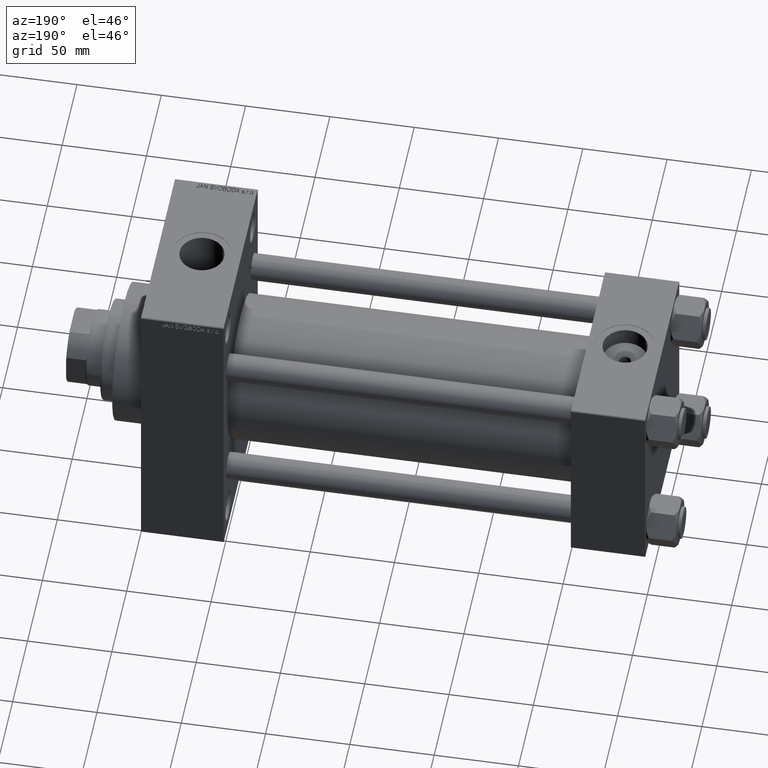
[diagram: clean part render]
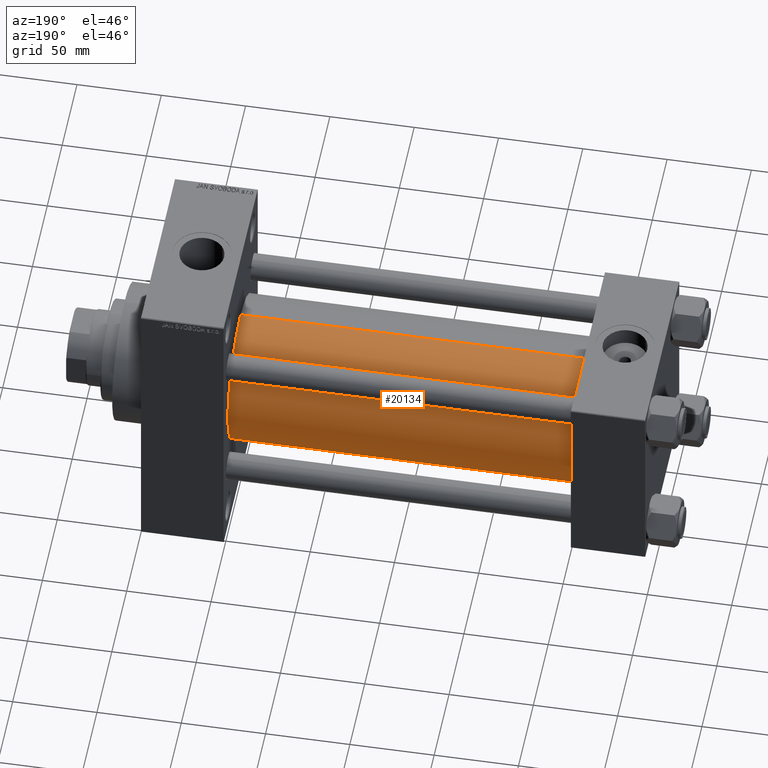
[diagram: same view with one face highlighted and labeled with its STEP entity id]
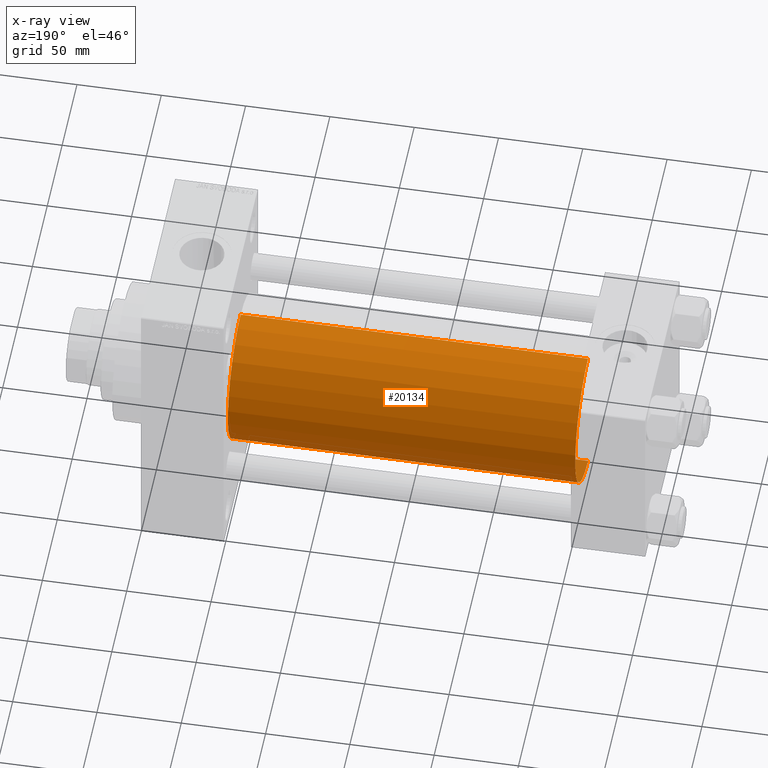
[diagram: x-ray of the same camera — body ghosted, the highlighted face saturated]
A machine part, auxiliary view. The second image highlights one B-rep face of the part: STEP entity #20134.
The next image is the same camera in x-ray: the body ghosted, the highlighted face saturated — about 0% of this face is hidden behind the body in this view.
In plain terms, the highlighted cylindrical surface (partial cylindrical patch) has radius 43 mm, axis along (-1, -0, -0).
Its self-contained STEP definition (entity closure, byte-faithful):
#3344 = LINE ( 'NONE', #39653, #22262 ) ;
#3491 = AXIS2_PLACEMENT_3D ( 'NONE', #13919, #18024, #7642 ) ;
#3829 = EDGE_CURVE ( 'NONE', #15130, #29591, #24357, .T. ) ;
#5192 = ORIENTED_EDGE ( 'NONE', *, *, #18555, .F. ) ;
#7642 = DIRECTION ( 'NONE',  ( 0.000000000000000000, 0.000000000000000000, -1.000000000000000000 ) ) ;
#10314 = FACE_OUTER_BOUND ( 'NONE', #32495, .T. ) ;
#11748 = AXIS2_PLACEMENT_3D ( 'NONE', #45814, #42198, #38080 ) ;
#12310 = CARTESIAN_POINT ( 'NONE',  ( 43.99999999999998579, 2.663896022368408223E-15, -43.00000000000000000 ) ) ;
#13919 = CARTESIAN_POINT ( 'NONE',  ( 250.0000000000000000, -2.602085213965210642E-15, 0.000000000000000000 ) ) ;
#15130 = VERTEX_POINT ( 'NONE', #36742 ) ;
#16116 = EDGE_CURVE ( 'NONE', #15130, #38187, #3344, .T. ) ;
#18024 = DIRECTION ( 'NONE',  ( 1.000000000000000000, 0.000000000000000000, 0.000000000000000000 ) ) ;
#18555 = EDGE_CURVE ( 'NONE', #29591, #32395, #20554, .T. ) ;
#18686 = ORIENTED_EDGE ( 'NONE', *, *, #16116, .T. ) ;
#20134 = ADVANCED_FACE ( 'NONE', ( #10314 ), #27600, .T. ) ;
#20313 = CARTESIAN_POINT ( 'NONE',  ( 250.0000000000000000, -2.602085213965210642E-15, 43.00000000000000000 ) ) ;
#20554 = LINE ( 'NONE', #20313, #30906 ) ;
#21449 = CARTESIAN_POINT ( 'NONE',  ( 250.0000000000000000, -2.602085213965210642E-15, 0.000000000000000000 ) ) ;
#22262 = VECTOR ( 'NONE', #29028, 1000.000000000000000 ) ;
#23903 = ORIENTED_EDGE ( 'NONE', *, *, #28305, .T. ) ;
#24357 = CIRCLE ( 'NONE', #3491, 43.00000000000000000 ) ;
#26334 = CARTESIAN_POINT ( 'NONE',  ( 250.0000000000000000, -2.602085213965210642E-15, 43.00000000000000000 ) ) ;
#27600 = CYLINDRICAL_SURFACE ( 'NONE', #37113, 43.00000000000000000 ) ;
#27837 = DIRECTION ( 'NONE',  ( -1.000000000000000000, -0.000000000000000000, -0.000000000000000000 ) ) ;
#28305 = EDGE_CURVE ( 'NONE', #38187, #32395, #40346, .T. ) ;
#29028 = DIRECTION ( 'NONE',  ( -1.000000000000000000, -0.000000000000000000, -0.000000000000000000 ) ) ;
#29591 = VERTEX_POINT ( 'NONE', #26334 ) ;
#30906 = VECTOR ( 'NONE', #27837, 1000.000000000000000 ) ;
#32395 = VERTEX_POINT ( 'NONE', #46523 ) ;
#32495 = EDGE_LOOP ( 'NONE', ( #37932, #18686, #23903, #5192 ) ) ;
#35078 = DIRECTION ( 'NONE',  ( -1.000000000000000000, -0.000000000000000000, -0.000000000000000000 ) ) ;
#36742 = CARTESIAN_POINT ( 'NONE',  ( 250.0000000000000000, 2.663896022368408223E-15, -43.00000000000000000 ) ) ;
#37113 = AXIS2_PLACEMENT_3D ( 'NONE', #21449, #35078, #38717 ) ;
#37932 = ORIENTED_EDGE ( 'NONE', *, *, #3829, .F. ) ;
#38080 = DIRECTION ( 'NONE',  ( 0.000000000000000000, 0.000000000000000000, 1.000000000000000000 ) ) ;
#38187 = VERTEX_POINT ( 'NONE', #12310 ) ;
#38717 = DIRECTION ( 'NONE',  ( 0.000000000000000000, 0.000000000000000000, 1.000000000000000000 ) ) ;
#39653 = CARTESIAN_POINT ( 'NONE',  ( 250.0000000000000000, 2.663896022368408223E-15, -43.00000000000000000 ) ) ;
#40346 = CIRCLE ( 'NONE', #11748, 43.00000000000000000 ) ;
#42198 = DIRECTION ( 'NONE',  ( 1.000000000000000000, -0.000000000000000000, 0.000000000000000000 ) ) ;
#45814 = CARTESIAN_POINT ( 'NONE',  ( 43.99999999999998579, -2.602085213965210642E-15, 0.000000000000000000 ) ) ;
#46523 = CARTESIAN_POINT ( 'NONE',  ( 43.99999999999998579, -2.602085213965210642E-15, 43.00000000000000000 ) ) ;